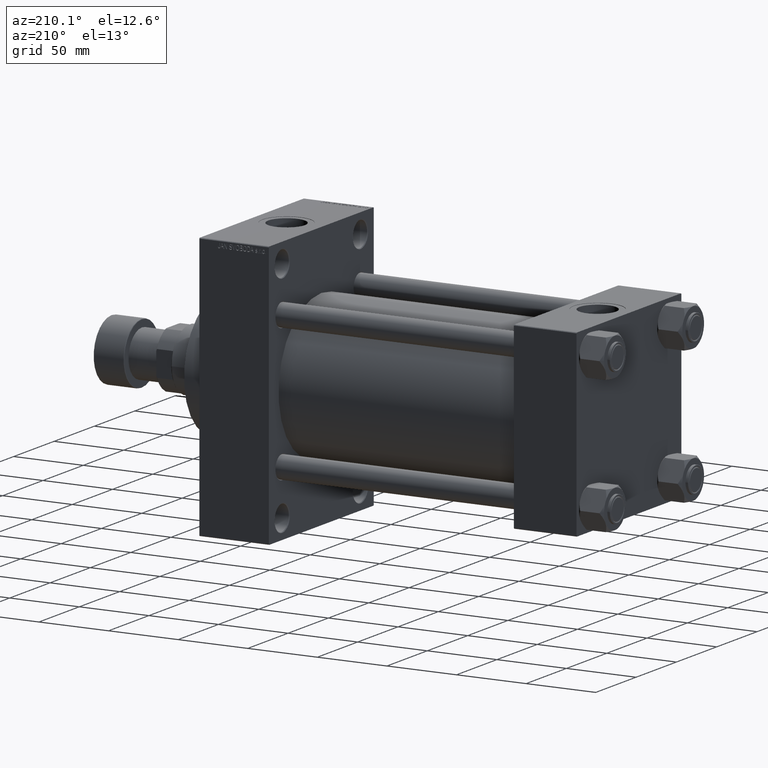
[diagram: clean part render]
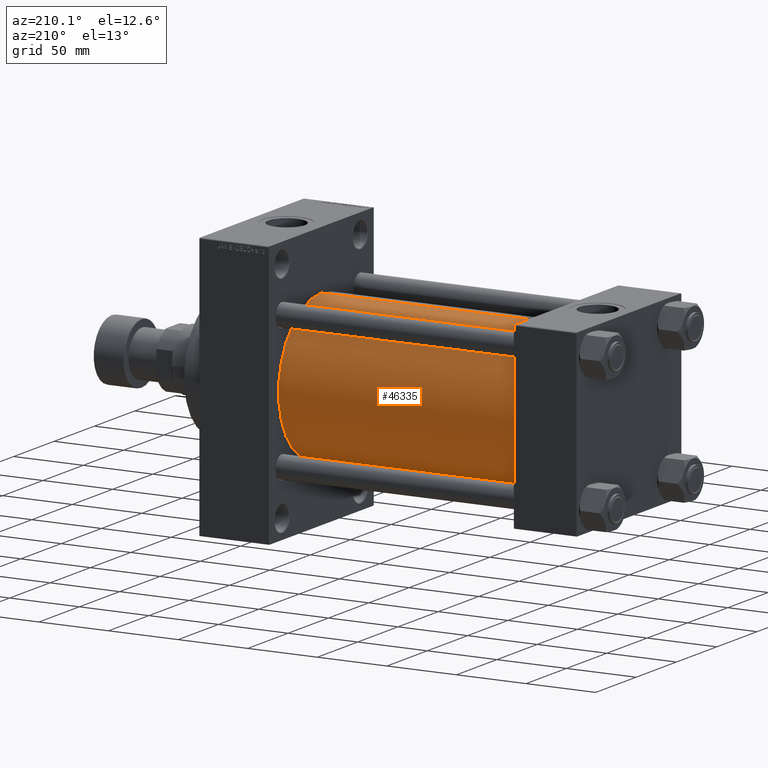
[diagram: same view with one face highlighted and labeled with its STEP entity id]
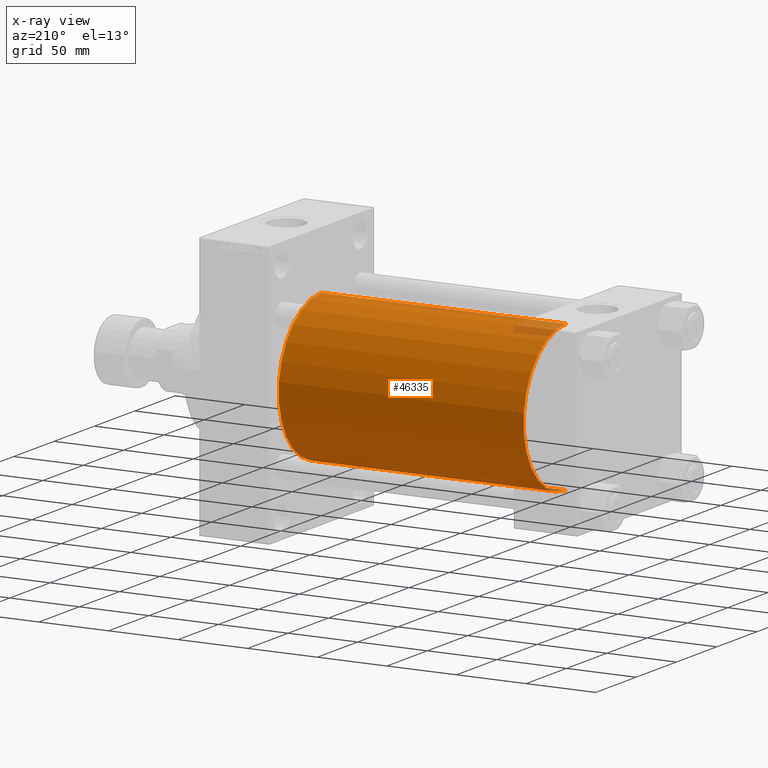
[diagram: x-ray of the same camera — body ghosted, the highlighted face saturated]
A machine part, auxiliary view. The second image highlights one B-rep face of the part: STEP entity #46335.
The next image is the same camera in x-ray: the body ghosted, the highlighted face saturated — about 2% of this face is hidden behind the body in this view.
In plain terms, the highlighted cylindrical surface (partial cylindrical patch) has radius 53 mm, axis along (-1, -0, -0).
Its self-contained STEP definition (entity closure, byte-faithful):
#994 = CARTESIAN_POINT ( 'NONE',  ( 220.9999999999999716, 3.888542821515762466E-15, -53.00000000000000711 ) ) ;
#2744 = ORIENTED_EDGE ( 'NONE', *, *, #47918, .F. ) ;
#5033 = CARTESIAN_POINT ( 'NONE',  ( 220.9999999999999716, -2.602085213965210642E-15, 0.000000000000000000 ) ) ;
#5482 = CIRCLE ( 'NONE', #26532, 53.00000000000000711 ) ;
#5515 = DIRECTION ( 'NONE',  ( 1.000000000000000000, 0.000000000000000000, 0.000000000000000000 ) ) ;
#7029 = ORIENTED_EDGE ( 'NONE', *, *, #11983, .T. ) ;
#7544 = VECTOR ( 'NONE', #9941, 1000.000000000000000 ) ;
#7979 = LINE ( 'NONE', #15049, #35830 ) ;
#8239 = EDGE_LOOP ( 'NONE', ( #40230, #35975, #7029, #2744 ) ) ;
#9941 = DIRECTION ( 'NONE',  ( -1.000000000000000000, -0.000000000000000000, -0.000000000000000000 ) ) ;
#10064 = VERTEX_POINT ( 'NONE', #45759 ) ;
#11983 = EDGE_CURVE ( 'NONE', #10064, #42119, #16592, .T. ) ;
#13675 = VERTEX_POINT ( 'NONE', #21320 ) ;
#15049 = CARTESIAN_POINT ( 'NONE',  ( 220.9999999999999716, -2.602085213965210642E-15, 53.00000000000000711 ) ) ;
#16592 = CIRCLE ( 'NONE', #28278, 53.00000000000000711 ) ;
#17104 = DIRECTION ( 'NONE',  ( 0.000000000000000000, 0.000000000000000000, 1.000000000000000000 ) ) ;
#18496 = DIRECTION ( 'NONE',  ( -1.000000000000000000, -0.000000000000000000, -0.000000000000000000 ) ) ;
#19576 = CARTESIAN_POINT ( 'NONE',  ( 44.99999999999998579, -2.602085213965210642E-15, 0.000000000000000000 ) ) ;
#19822 = VERTEX_POINT ( 'NONE', #994 ) ;
#20365 = EDGE_CURVE ( 'NONE', #19822, #10064, #20927, .T. ) ;
#20398 = DIRECTION ( 'NONE',  ( 0.000000000000000000, 0.000000000000000000, -1.000000000000000000 ) ) ;
#20927 = LINE ( 'NONE', #35863, #7544 ) ;
#21320 = CARTESIAN_POINT ( 'NONE',  ( 220.9999999999999716, -2.602085213965210642E-15, 53.00000000000000711 ) ) ;
#24796 = AXIS2_PLACEMENT_3D ( 'NONE', #26522, #29713, #37331 ) ;
#26522 = CARTESIAN_POINT ( 'NONE',  ( 220.9999999999999716, -2.602085213965210642E-15, 0.000000000000000000 ) ) ;
#26532 = AXIS2_PLACEMENT_3D ( 'NONE', #5033, #5515, #20398 ) ;
#28278 = AXIS2_PLACEMENT_3D ( 'NONE', #19576, #42573, #17104 ) ;
#29713 = DIRECTION ( 'NONE',  ( -1.000000000000000000, -0.000000000000000000, -0.000000000000000000 ) ) ;
#31569 = EDGE_CURVE ( 'NONE', #19822, #13675, #5482, .T. ) ;
#31648 = CARTESIAN_POINT ( 'NONE',  ( 44.99999999999998579, -2.602085213965210642E-15, 53.00000000000000711 ) ) ;
#35830 = VECTOR ( 'NONE', #18496, 1000.000000000000000 ) ;
#35863 = CARTESIAN_POINT ( 'NONE',  ( 220.9999999999999716, 3.888542821515762466E-15, -53.00000000000000711 ) ) ;
#35975 = ORIENTED_EDGE ( 'NONE', *, *, #20365, .T. ) ;
#37331 = DIRECTION ( 'NONE',  ( 0.000000000000000000, 0.000000000000000000, 1.000000000000000000 ) ) ;
#40230 = ORIENTED_EDGE ( 'NONE', *, *, #31569, .F. ) ;
#42119 = VERTEX_POINT ( 'NONE', #31648 ) ;
#42573 = DIRECTION ( 'NONE',  ( 1.000000000000000000, -0.000000000000000000, 0.000000000000000000 ) ) ;
#44408 = FACE_OUTER_BOUND ( 'NONE', #8239, .T. ) ;
#44880 = CYLINDRICAL_SURFACE ( 'NONE', #24796, 53.00000000000000711 ) ;
#45759 = CARTESIAN_POINT ( 'NONE',  ( 44.99999999999998579, 3.888542821515762466E-15, -53.00000000000000711 ) ) ;
#46335 = ADVANCED_FACE ( 'NONE', ( #44408 ), #44880, .T. ) ;
#47918 = EDGE_CURVE ( 'NONE', #13675, #42119, #7979, .T. ) ;